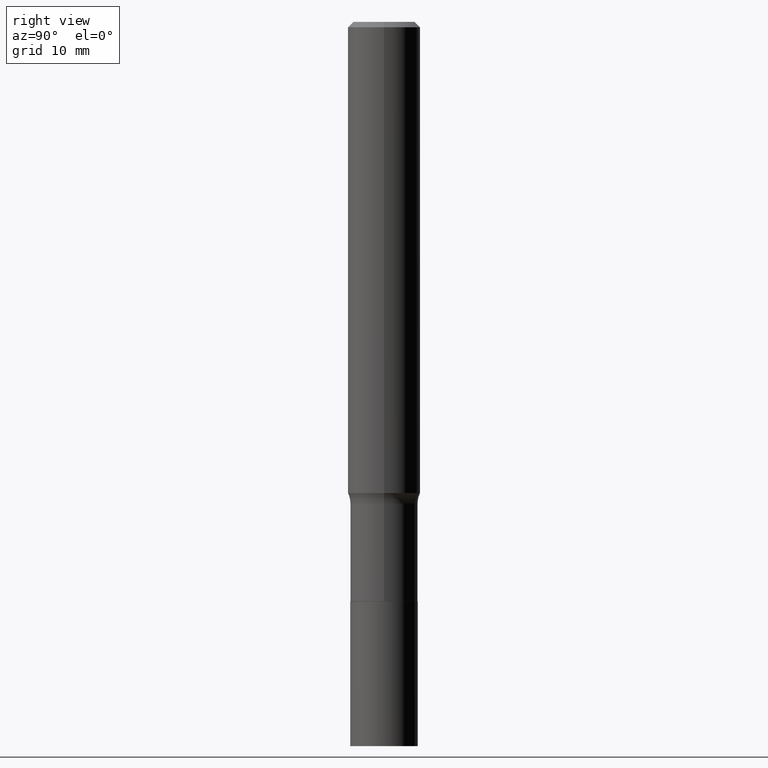
[diagram: clean part render]
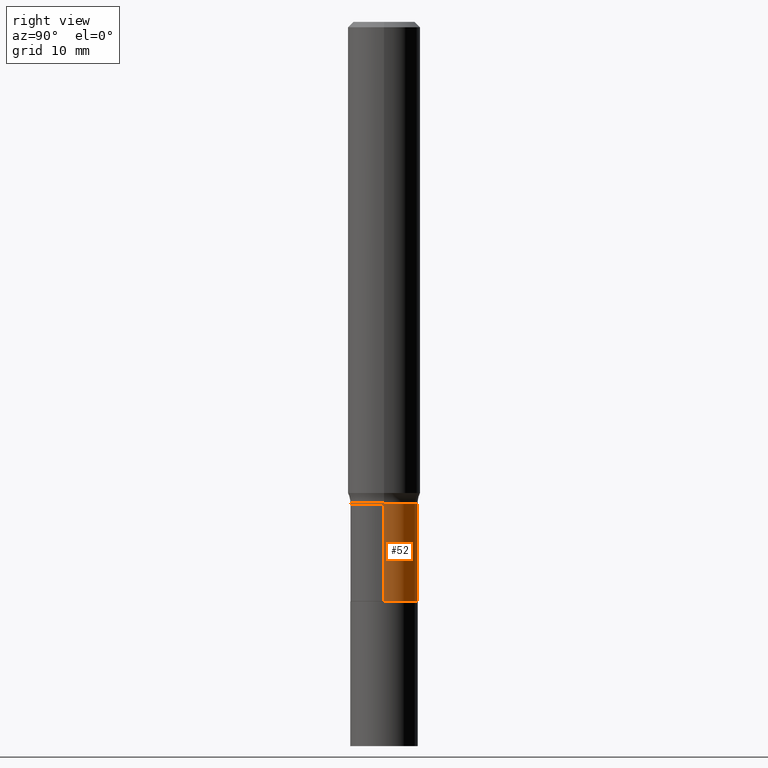
[diagram: same view with one face highlighted and labeled with its STEP entity id]
A machine part, right view. The second image highlights one B-rep face of the part: STEP entity #52.
In plain terms, the highlighted cylindrical surface (edge-blend (fillet) strip) has radius 2.8003 mm, axis along (-0, 0, 1).
Its self-contained STEP definition (entity closure, byte-faithful):
#1 = DIRECTION ( 'NONE',  ( -2.445468806185136877E-29, 3.491481338843145188E-15, 1.000000000000000000 ) ) ;
#44 = VECTOR ( 'NONE', #128, 39.37007874015748143 ) ;
#48 = LINE ( 'NONE', #231, #44 ) ;
#49 = DIRECTION ( 'NONE',  ( -2.445468806185136597E-29, 3.491481338843145583E-15, 1.000000000000000000 ) ) ;
#52 = ADVANCED_FACE ( 'NONE', ( #104 ), #140, .T. ) ;
#56 = VECTOR ( 'NONE', #1, 39.37007874015748143 ) ;
#61 = VERTEX_POINT ( 'NONE', #284 ) ;
#89 = ORIENTED_EDGE ( 'NONE', *, *, #177, .T. ) ;
#104 = FACE_OUTER_BOUND ( 'NONE', #145, .T. ) ;
#114 = DIRECTION ( 'NONE',  ( 1.000000000000000000, -6.982962677686269866E-15, 0.000000000000000000 ) ) ;
#125 = DIRECTION ( 'NONE',  ( 1.000000000000000000, -6.982962677686261977E-15, 0.000000000000000000 ) ) ;
#128 = DIRECTION ( 'NONE',  ( -2.445468806185136877E-29, 3.491481338843145188E-15, 1.000000000000000000 ) ) ;
#129 = CARTESIAN_POINT ( 'NONE',  ( -0.1102499999999999869, -5.258285942558669989E-15, -1.889700000000000379 ) ) ;
#137 = ORIENTED_EDGE ( 'NONE', *, *, #447, .F. ) ;
#140 = CYLINDRICAL_SURFACE ( 'NONE', #210, 0.1102499999999999730 ) ;
#145 = EDGE_LOOP ( 'NONE', ( #89, #214, #391, #137 ) ) ;
#155 = CARTESIAN_POINT ( 'NONE',  ( 3.842076041397468418E-29, -5.485466331456466239E-15, -1.571100000000000163 ) ) ;
#177 = EDGE_CURVE ( 'NONE', #396, #346, #398, .T. ) ;
#209 = CIRCLE ( 'NONE', #466, 0.1102499999999999730 ) ;
#210 = AXIS2_PLACEMENT_3D ( 'NONE', #250, #419, #423 ) ;
#214 = ORIENTED_EDGE ( 'NONE', *, *, #264, .T. ) ;
#231 = CARTESIAN_POINT ( 'NONE',  ( 0.1102499999999999730, -7.698716352149106840E-16, 5.375984895315018203E-30 ) ) ;
#250 = CARTESIAN_POINT ( 'NONE',  ( 0.000000000000000000, 0.000000000000000000, 0.000000000000000000 ) ) ;
#264 = EDGE_CURVE ( 'NONE', #346, #340, #291, .T. ) ;
#284 = CARTESIAN_POINT ( 'NONE',  ( 0.1102499999999999730, -6.255337966671376923E-15, -1.571100000000000163 ) ) ;
#291 = LINE ( 'NONE', #325, #56 ) ;
#302 = CARTESIAN_POINT ( 'NONE',  ( 0.1102499999999999869, -7.367723921226805540E-15, -1.889700000000000379 ) ) ;
#325 = CARTESIAN_POINT ( 'NONE',  ( -0.1102499999999999730, 7.833733661755102632E-16, -5.423125937006032068E-30 ) ) ;
#326 = CARTESIAN_POINT ( 'NONE',  ( 4.621202403048053204E-29, -6.597852286011893278E-15, -1.889700000000000379 ) ) ;
#340 = VERTEX_POINT ( 'NONE', #444 ) ;
#346 = VERTEX_POINT ( 'NONE', #129 ) ;
#367 = DIRECTION ( 'NONE',  ( -2.445468806185136597E-29, 3.491481338843145583E-15, 1.000000000000000000 ) ) ;
#391 = ORIENTED_EDGE ( 'NONE', *, *, #425, .F. ) ;
#396 = VERTEX_POINT ( 'NONE', #302 ) ;
#398 = CIRCLE ( 'NONE', #403, 0.1102499999999999869 ) ;
#403 = AXIS2_PLACEMENT_3D ( 'NONE', #326, #49, #114 ) ;
#419 = DIRECTION ( 'NONE',  ( -2.445468806185136597E-29, 3.491481338843145583E-15, 1.000000000000000000 ) ) ;
#423 = DIRECTION ( 'NONE',  ( 1.000000000000000000, -6.982962677686266711E-15, 4.876176775795935793E-29 ) ) ;
#425 = EDGE_CURVE ( 'NONE', #61, #340, #209, .T. ) ;
#444 = CARTESIAN_POINT ( 'NONE',  ( -0.1102499999999999730, -5.258285942558669989E-15, -1.571100000000000163 ) ) ;
#447 = EDGE_CURVE ( 'NONE', #396, #61, #48, .T. ) ;
#466 = AXIS2_PLACEMENT_3D ( 'NONE', #155, #367, #125 ) ;